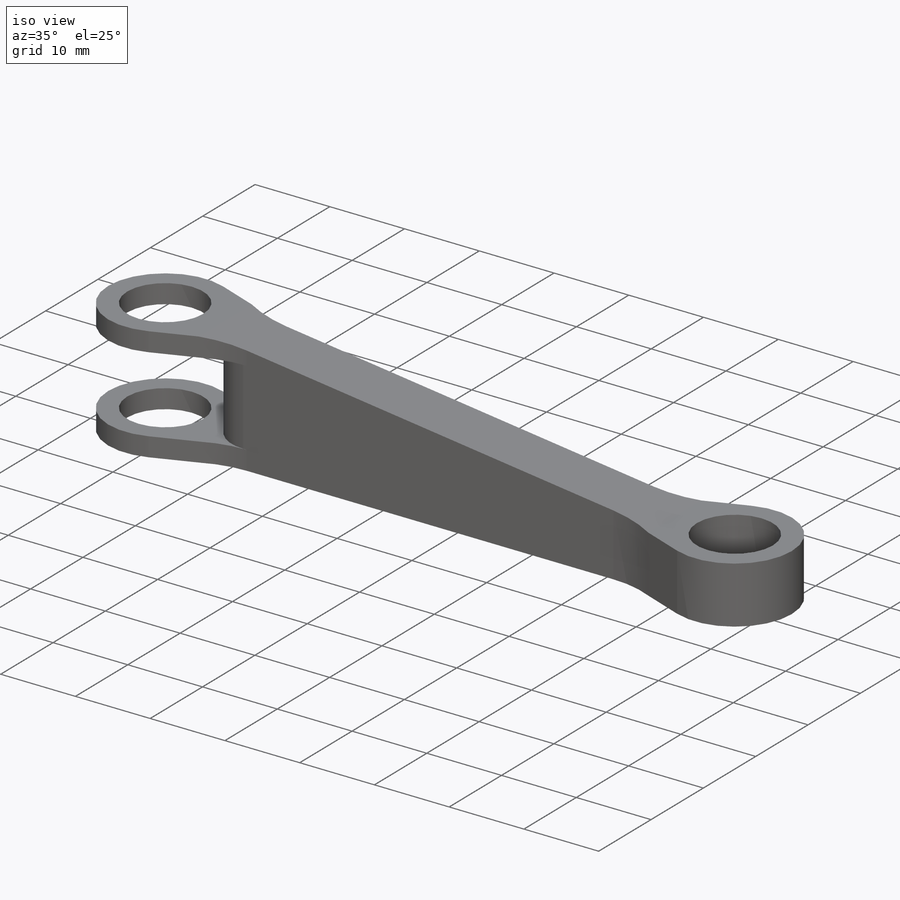
[diagram: iso view]
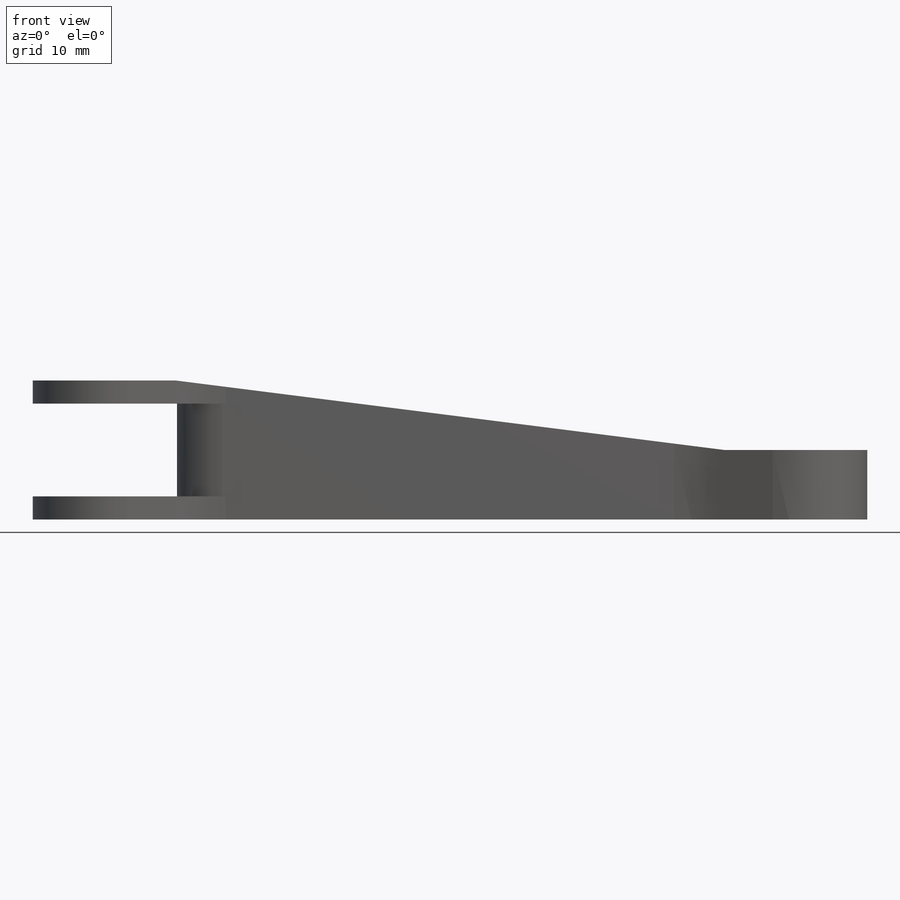
[diagram: front view]
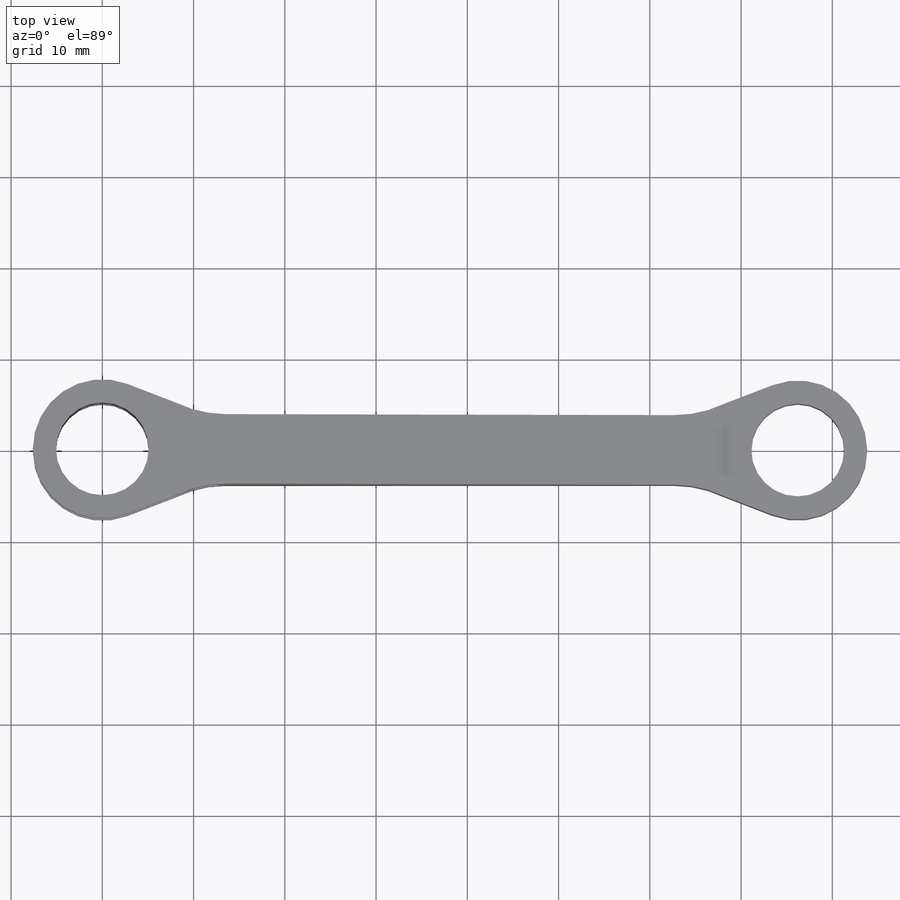
[diagram: top view]
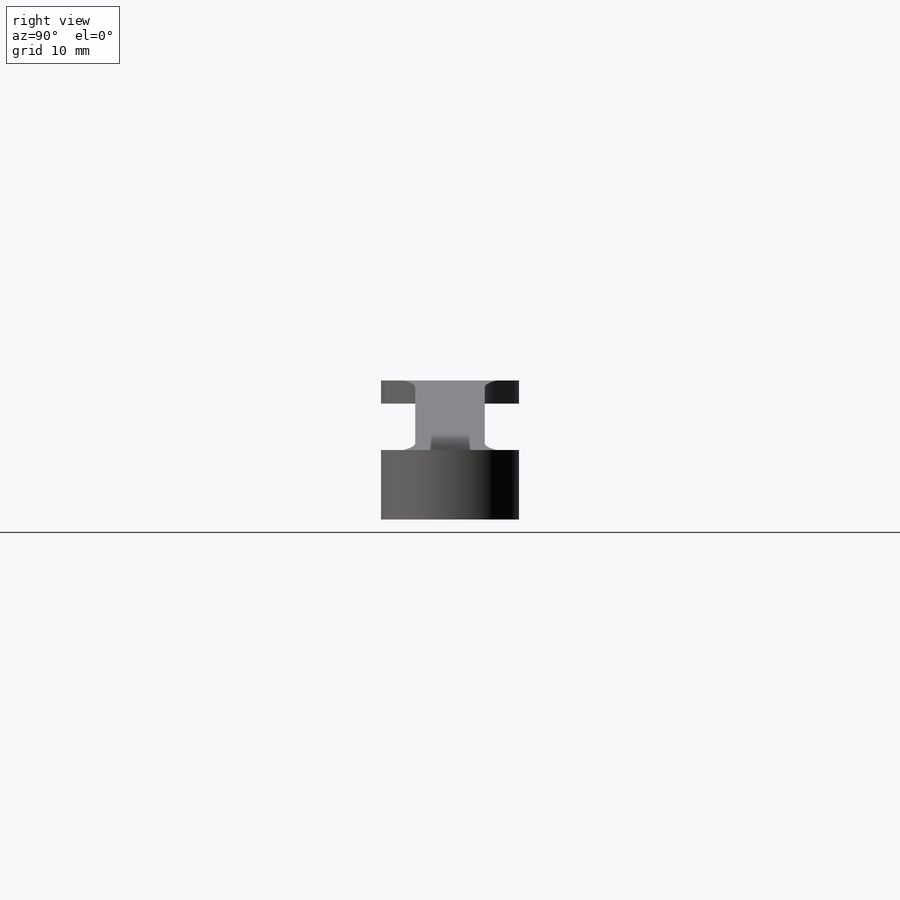
[diagram: right view]
SOLIDWORKS PART (.sldprt)
format: sldprt  version: not decoded by parser v0  size: 445,952 bytes
history: native  units: mm
features: sketch x2, fillet x2, material x1, extrude x1, plane x1, cut_extrude x1 (+13 scaffold rows collapsed)
feature tree (21):
  scaffold x13  (default folders/planes/origin — collapsed)
  material  "Material <not specified>"
  sketch  "Sketch1"  dims[c1.D1=10.16mm c1.D3=10.16mm c1.D4=10.16mm c1.D2=76.2mm c2.D3=2.54mm c2.D4=2.54mm c2.D5=3.81mm c2.D6=1.27mm c2.D7=2.032mm]
  extrude  "Boss-Extrude1"  Depth=15.24mm
  plane  "Plane1"  Offset=10.16mm
  sketch  "Sketch2"  dims[D1=7.62mm D2=2.54mm]
  cut_extrude  "Cut-Extrude1"  [1 undecoded]
  fillet  "Fillet1"  Radius=12.7mm
  fillet  "Fillet2"  Radius=5.08mm
decode coverage: 5 of 6 modeling features carry decoded parameters
note: 1 parameter value undecoded
note: suppression state not decoded; provenance and decode notes live in map.json
